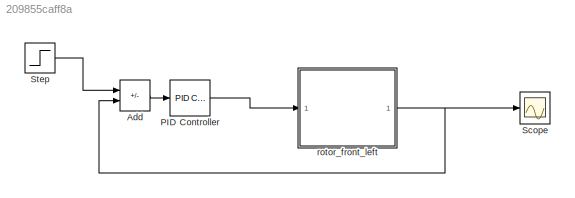
MODEL slx_209855caff8a
KIND model
CONFIG AbsTol = auto
CONFIG EnableMultiTasking = off
CONFIG FixedStep = auto
CONFIG MaxStep = auto
CONFIG MinStep = auto
CONFIG RelTol = 1e-3
CONFIG SampleTimeConstraint = Unconstrained
CONFIG SolverName = VariableStepAuto
CONFIG StartTime = 0.0
CONFIG StopTime = 10
BLOCK [Sum] Add
  IconShape = rectangular
  Inputs = +-
BLOCK [Reference] PID Controller  REF=slpidlib/PID Controller
  LibrarySourceBlock = simulink/Continuous/PID Controller
  SourceBlock = slpidlib/PID Controller
  SourceType = PID 1dof
BLOCK [Scope] Scope
  Floating = off
  NumInputPorts = 1
  ScopeSpecificationString = Simulink.scopes.TimeScopeBlockCfg('CurrentConfiguration', extmgr.ConfigurationSet(extmgr.Configuration('Core','General UI',true),extmgr.Configuration('Core','Source UI',true),extmgr.Configuration('Sources','WiredSimulink',true),extmgr.Configuration('Visuals','Time Domain',true,'SerializedDisplays',{struct('MinYLimReal','-2.316','MaxYLimReal','7.90888','YLabelReal','','MinYLimMag','0.00000','MaxYLi...<+1361ch>
BLOCK [Step] Step
  After = 6
  SampleTime = 0
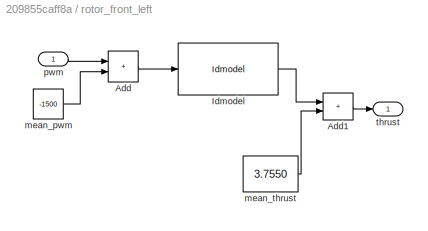
BLOCK [SubSystem] rotor_front_left
BLOCK [Sum] rotor_front_left/Add
  IconShape = rectangular
BLOCK [Sum] rotor_front_left/Add1
  IconShape = rectangular
BLOCK [Reference] rotor_front_left/Idmodel  REF=slident/Models/Idmodel  (lib defined in mdl_f7d4911ca73a)
  SourceBlock = slident/Models/Idmodel
  SourceType = Idmodel Block
BLOCK [Constant] rotor_front_left/mean_pwm
  Value = -1500
BLOCK [Constant] rotor_front_left/mean_thrust
  Value = 3.7550
BLOCK [Inport] rotor_front_left/pwm
BLOCK [Outport] rotor_front_left/thrust
LINE Add:1 -> PID Controller:1
LINE PID Controller:1 -> rotor_front_left:1
LINE Step:1 -> Add:1
LINE rotor_front_left/Add1:1 -> rotor_front_left/thrust:1
LINE rotor_front_left/Add:1 -> rotor_front_left/Idmodel:1
LINE rotor_front_left/Idmodel:1 -> rotor_front_left/Add1:1
LINE rotor_front_left/mean_pwm:1 -> rotor_front_left/Add:2
LINE rotor_front_left/mean_thrust:1 -> rotor_front_left/Add1:2
LINE rotor_front_left/pwm:1 -> rotor_front_left/Add:1
NET rotor_front_left:1 -> Add:2, Scope:1
note: NET lines group one-source signal fan-out (src -> all destinations, sorted); 1:1 wires keep LINE
